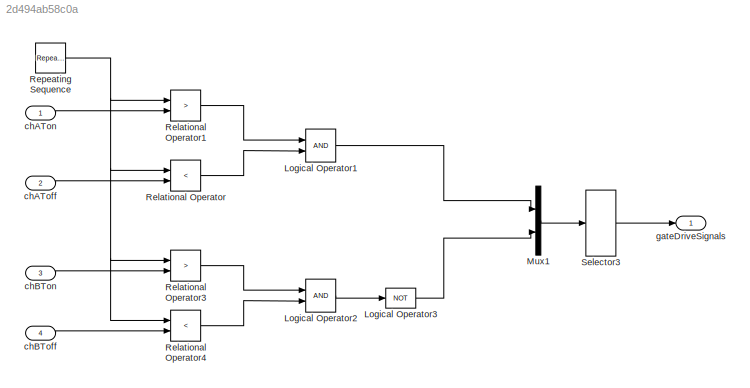
MODEL slx_2d494ab58c0a
KIND model
CONFIG AbsTol = auto
CONFIG EnableMultiTasking = off
CONFIG FixedStep = auto
CONFIG MaxStep = auto
CONFIG MinStep = auto
CONFIG RelTol = 1e-3
CONFIG SampleTimeConstraint = Unconstrained
CONFIG SolverName = FixedStepAuto
CONFIG StartTime = 0.0
CONFIG StopTime = 10.0
BLOCK [Logic] Logical Operator1
  AllPortsSameDT = off
  OutDataTypeStr = boolean
  Ports = [2, 1]
BLOCK [Logic] Logical Operator2
  AllPortsSameDT = off
  OutDataTypeStr = boolean
  Ports = [2, 1]
BLOCK [Logic] Logical Operator3
  AllPortsSameDT = off
  Operator = NOT
  OutDataTypeStr = boolean
  Ports = [1, 1]
BLOCK [Mux] Mux1
  DisplayOption = bar
  Inputs = 2
  Ports = [2, 1]
BLOCK [RelationalOperator] Relational Operator
  InputSameDT = off
  Operator = <
  OutDataTypeStr = boolean
  Ports = [2, 1]
  RndMeth = Simplest
BLOCK [RelationalOperator] Relational Operator1
  InputSameDT = off
  Operator = >
  OutDataTypeStr = boolean
  Ports = [2, 1]
  RndMeth = Simplest
BLOCK [RelationalOperator] Relational Operator3
  InputSameDT = off
  Operator = >
  OutDataTypeStr = boolean
  Ports = [2, 1]
  RndMeth = Simplest
BLOCK [RelationalOperator] Relational Operator4
  InputSameDT = off
  Operator = <
  OutDataTypeStr = boolean
  Ports = [2, 1]
  RndMeth = Simplest
BLOCK [Reference] Repeating Sequence  REF=simulink/Sources/Repeating
Sequence
  Ports = [0, 1]
  SourceBlock = simulink/Sources/Repeating\nSequence
  SourceProductBaseCode = SL
  SourceType = Repeating table
BLOCK [Selector] Selector3
  IndexOptions = Index vector (dialog)
  Indices = [1 4 2 5 3 6]
  InputPortWidth = 6
  OutputSizes = 1
  Ports = [1, 1]
BLOCK [Inport] chAToff
  Port = 2
  PortDimensions = 3
BLOCK [Inport] chATon
  PortDimensions = 3
BLOCK [Inport] chBToff
  Port = 4
  PortDimensions = 3
BLOCK [Inport] chBTon
  Port = 3
  PortDimensions = 3
BLOCK [Outport] gateDriveSignals
LINE Logical Operator1:1 -> Mux1:1
LINE Logical Operator2:1 -> Logical Operator3:1
LINE Logical Operator3:1 -> Mux1:2
LINE Mux1:1 -> Selector3:1
LINE Relational Operator1:1 -> Logical Operator1:1
LINE Relational Operator3:1 -> Logical Operator2:1
LINE Relational Operator4:1 -> Logical Operator2:2
LINE Relational Operator:1 -> Logical Operator1:2
NET Repeating Sequence:1 -> Relational Operator1:1, Relational Operator3:1, Relational Operator4:1, Relational Operator:1
LINE Selector3:1 -> gateDriveSignals:1
LINE chAToff:1 -> Relational Operator:2
LINE chATon:1 -> Relational Operator1:2
LINE chBToff:1 -> Relational Operator4:2
LINE chBTon:1 -> Relational Operator3:2
note: NET lines group one-source signal fan-out (src -> all destinations, sorted); 1:1 wires keep LINE
